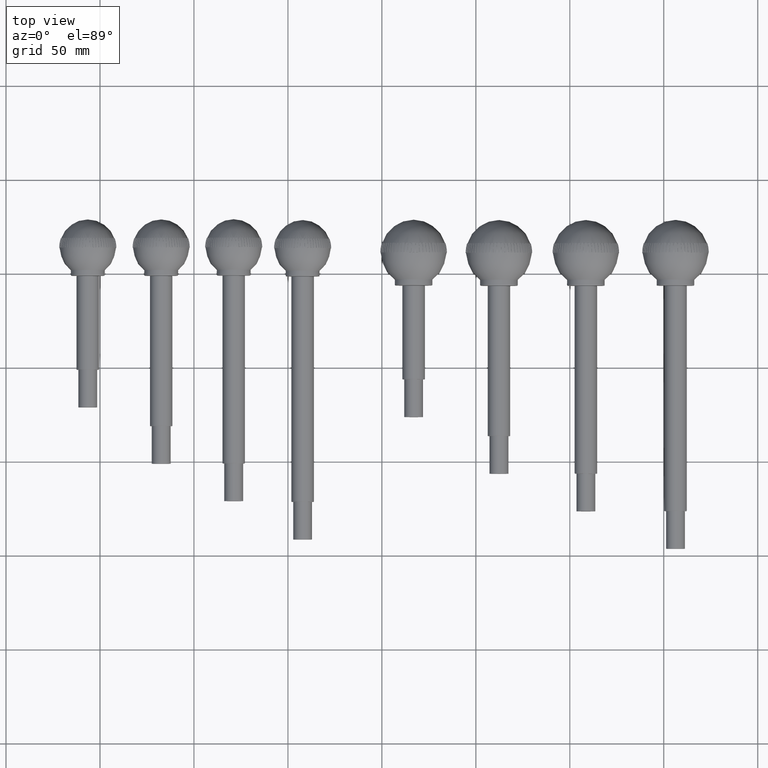
[diagram: clean part render]
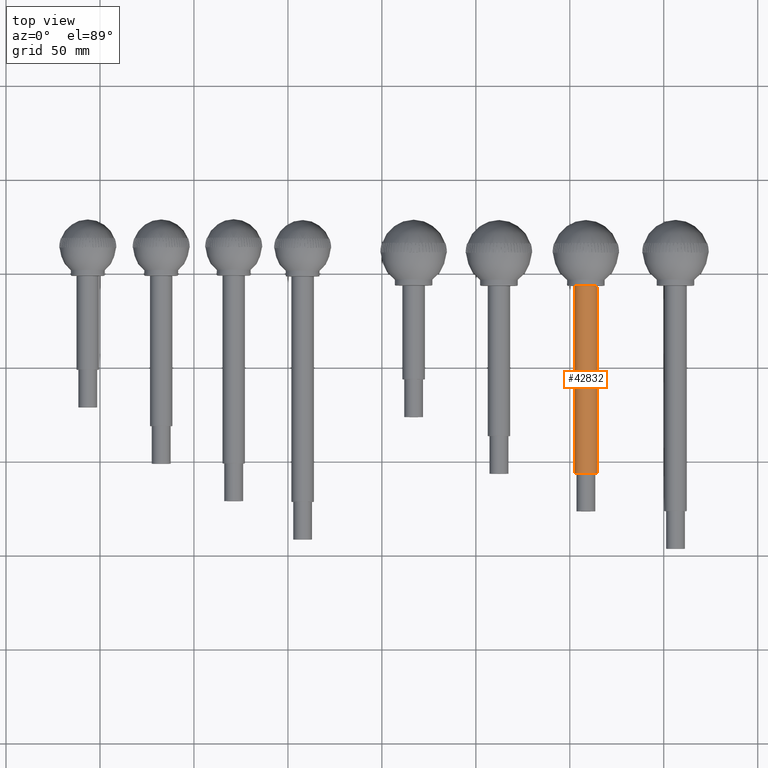
[diagram: same view with one face highlighted and labeled with its STEP entity id]
A machine part, top view. The second image highlights one B-rep face of the part: STEP entity #42832.
In plain terms, the highlighted cylindrical surface (bore or boss wall) has radius 5.975 mm, axis along (0, 1, -0).
Its self-contained STEP definition (entity closure, byte-faithful):
#6499=CYLINDRICAL_SURFACE('',#48845,5.97500000000002);
#6998=FACE_BOUND('',#12284,.T.);
#9272=FACE_OUTER_BOUND('',#12283,.T.);
#12283=EDGE_LOOP('',(#36683));
#12284=EDGE_LOOP('',(#36684));
#16126=CIRCLE('',#48843,5.97500000000002);
#16128=CIRCLE('',#48846,5.97500000000002);
#20070=VERTEX_POINT('',#75425);
#20072=VERTEX_POINT('',#75430);
#25694=EDGE_CURVE('',#20070,#20070,#16126,.T.);
#25696=EDGE_CURVE('',#20072,#20072,#16128,.T.);
#36683=ORIENTED_EDGE('',*,*,#25696,.F.);
#36684=ORIENTED_EDGE('',*,*,#25694,.F.);
#42832=ADVANCED_FACE('',(#9272,#6998),#6499,.T.);
#48843=AXIS2_PLACEMENT_3D('',#75426,#62708,#62709);
#48845=AXIS2_PLACEMENT_3D('',#75429,#62712,#62713);
#48846=AXIS2_PLACEMENT_3D('',#75431,#62714,#62715);
#62708=DIRECTION('center_axis',(1.,0.,0.));
#62709=DIRECTION('ref_axis',(0.,-1.,0.));
#62712=DIRECTION('center_axis',(1.,0.,0.));
#62713=DIRECTION('ref_axis',(0.,1.,0.));
#62714=DIRECTION('center_axis',(-1.,0.,0.));
#62715=DIRECTION('ref_axis',(0.,-1.,0.));
#75425=CARTESIAN_POINT('',(119.8,5.97500000000002,7.31726462490546E-16));
#75426=CARTESIAN_POINT('Origin',(119.8,0.,0.));
#75429=CARTESIAN_POINT('Origin',(70.,0.,0.));
#75430=CARTESIAN_POINT('',(20.2,5.97500000000002,-7.31726462490546E-16));
#75431=CARTESIAN_POINT('Origin',(20.2,0.,0.));